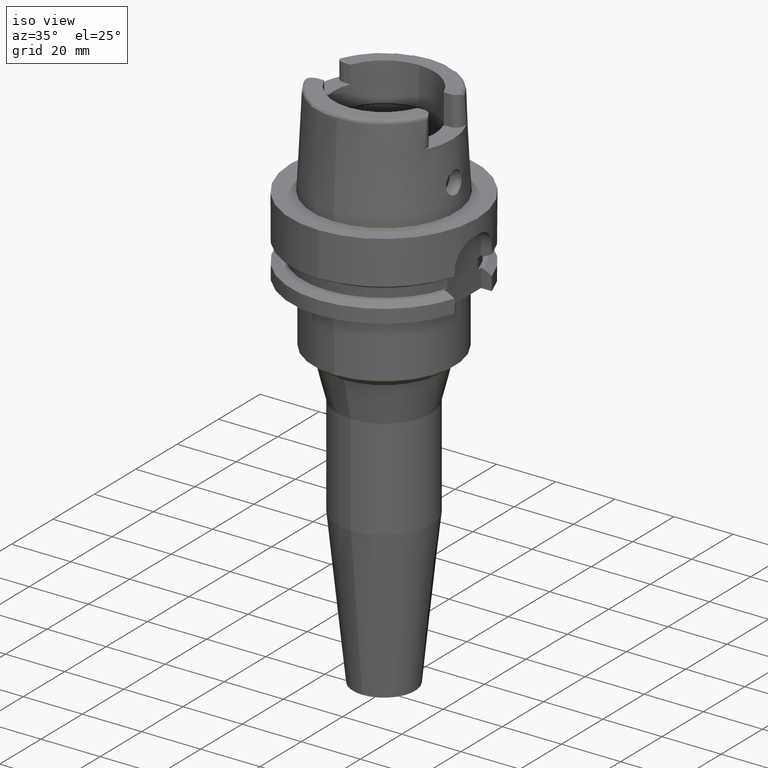
[diagram: clean part render]
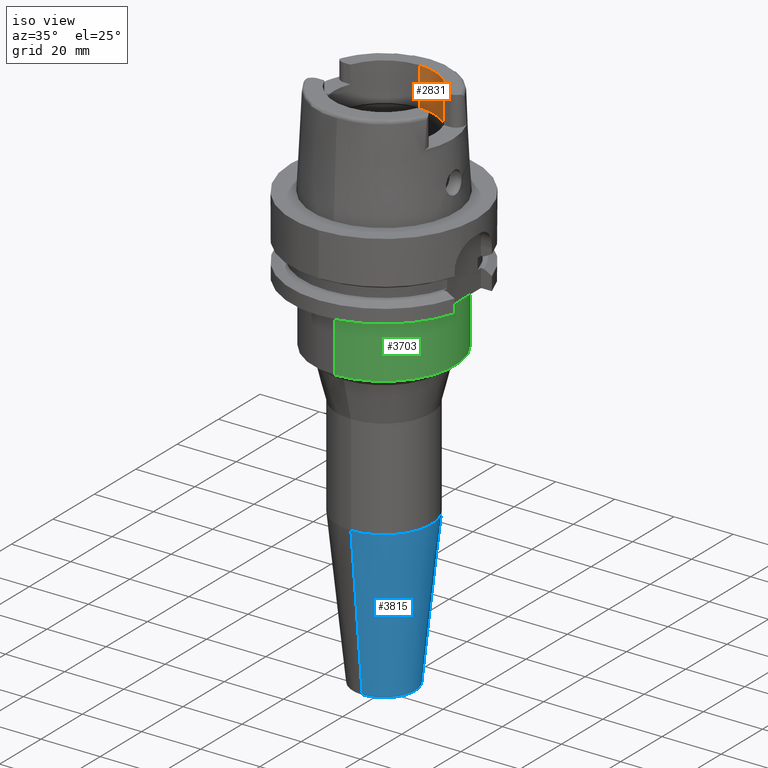
[diagram: same view with three faces highlighted in distinct colors, each labeled with its STEP entity id]
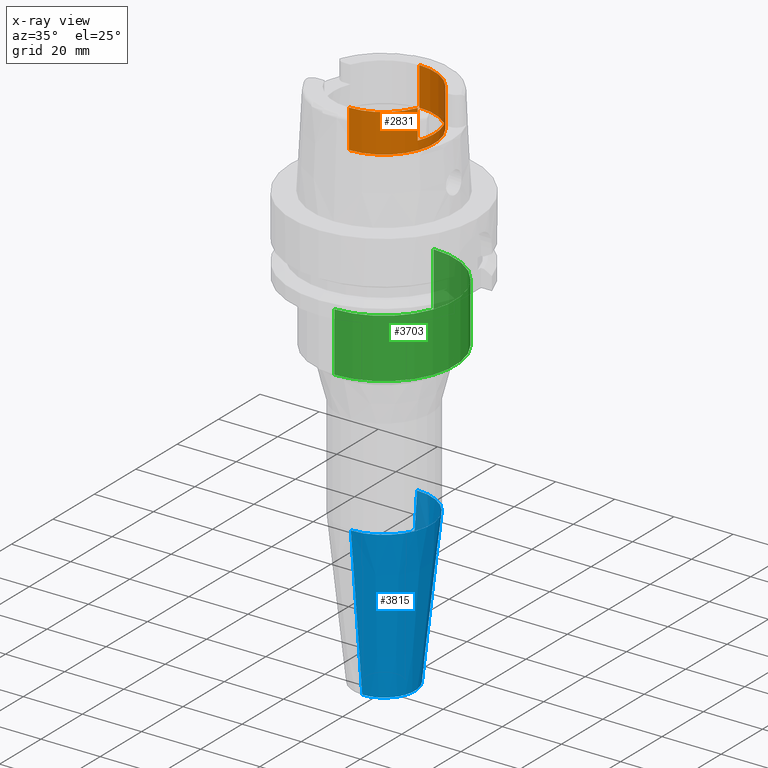
[diagram: x-ray of the same camera — body ghosted, the three highlighted faces saturated]
A machine part, iso view with three faces highlighted in distinct colors.
The next image is the same camera in x-ray (body ghosted, the three faces saturated) — at least one of them is partly hidden behind the body in this view.
Their STEP definitions:

[orange] entity #2831 — the highlighted cylindrical surface (partial cylindrical patch) has radius 17 mm, axis along (0, 0, 1).
#25=DIRECTION('',(0.E0,7.376457760500E-14,1.E0));
#26=VECTOR('',#25,1.300397459622E1);
#27=CARTESIAN_POINT('',(0.E0,-1.7E1,1.899602540378E1));
#28=LINE('',#27,#26);
#122=CARTESIAN_POINT('',(0.E0,0.E0,3.2E1));
#123=DIRECTION('',(0.E0,0.E0,1.E0));
#124=DIRECTION('',(0.E0,-1.E0,0.E0));
#125=AXIS2_PLACEMENT_3D('',#122,#123,#124);
#316=DIRECTION('',(0.E0,0.E0,1.E0));
#317=VECTOR('',#316,1.E1);
#318=CARTESIAN_POINT('',(1.580149043603E1,-6.27E0,2.2E1));
#319=LINE('',#318,#317);
#323=DIRECTION('',(0.E0,-7.376457760500E-14,1.E0));
#324=VECTOR('',#323,1.300397459622E1);
#325=CARTESIAN_POINT('',(0.E0,1.7E1,1.899602540378E1));
#326=LINE('',#325,#324);
#330=DIRECTION('',(0.E0,0.E0,-1.E0));
#331=VECTOR('',#330,1.E1);
#332=CARTESIAN_POINT('',(1.580149043603E1,6.27E0,3.2E1));
#333=LINE('',#332,#331);
#337=CARTESIAN_POINT('',(0.E0,0.E0,2.2E1));
#338=DIRECTION('',(0.E0,0.E0,1.E0));
#339=DIRECTION('',(9.294994374136E-1,-3.688235294118E-1,0.E0));
#340=AXIS2_PLACEMENT_3D('',#337,#338,#339);
#428=CARTESIAN_POINT('',(0.E0,0.E0,3.2E1));
#429=DIRECTION('',(0.E0,0.E0,1.E0));
#430=DIRECTION('',(9.294994374136E-1,3.688235294118E-1,0.E0));
#431=AXIS2_PLACEMENT_3D('',#428,#429,#430);
#2243=CARTESIAN_POINT('',(0.E0,0.E0,1.899602540378E1));
#2244=DIRECTION('',(0.E0,0.E0,-1.E0));
#2245=DIRECTION('',(0.E0,1.E0,0.E0));
#2246=AXIS2_PLACEMENT_3D('',#2243,#2244,#2245);
#2295=CARTESIAN_POINT('',(0.E0,1.7E1,3.2E1));
#2296=VERTEX_POINT('',#2295);
#2297=CARTESIAN_POINT('',(0.E0,1.7E1,1.899602540378E1));
#2298=VERTEX_POINT('',#2297);
#2299=CARTESIAN_POINT('',(0.E0,-1.7E1,1.899602540378E1));
#2300=VERTEX_POINT('',#2299);
#2301=CARTESIAN_POINT('',(0.E0,-1.7E1,3.2E1));
#2302=VERTEX_POINT('',#2301);
#2327=CARTESIAN_POINT('',(1.580149043603E1,6.27E0,3.2E1));
#2328=VERTEX_POINT('',#2327);
#2331=CARTESIAN_POINT('',(1.580149043603E1,-6.27E0,3.2E1));
#2332=VERTEX_POINT('',#2331);
#2362=CARTESIAN_POINT('',(1.580149043603E1,-6.27E0,2.2E1));
#2363=CARTESIAN_POINT('',(1.580149043603E1,6.27E0,2.2E1));
#2364=VERTEX_POINT('',#2362);
#2365=VERTEX_POINT('',#2363);
#2812=CARTESIAN_POINT('',(0.E0,0.E0,-1.591E2));
#2813=DIRECTION('',(0.E0,0.E0,1.E0));
#2814=DIRECTION('',(0.E0,1.E0,0.E0));
#2815=AXIS2_PLACEMENT_3D('',#2812,#2813,#2814);
#2816=CYLINDRICAL_SURFACE('',#2815,1.7E1);
#2818=ORIENTED_EDGE('',*,*,#2817,.F.);
#2819=ORIENTED_EDGE('',*,*,#2804,.T.);
#2820=ORIENTED_EDGE('',*,*,#2694,.F.);
#2821=ORIENTED_EDGE('',*,*,#2639,.F.);
#2823=ORIENTED_EDGE('',*,*,#2822,.F.);
#2824=ORIENTED_EDGE('',*,*,#2635,.T.);
#2826=ORIENTED_EDGE('',*,*,#2825,.F.);
#2828=ORIENTED_EDGE('',*,*,#2827,.T.);
#2829=EDGE_LOOP('',(#2818,#2819,#2820,#2821,#2823,#2824,#2826,#2828));
#2830=FACE_OUTER_BOUND('',#2829,.F.);
#126=CIRCLE('',#125,1.7E1);
#341=CIRCLE('',#340,1.7E1);
#432=CIRCLE('',#431,1.7E1);
#2247=CIRCLE('',#2246,1.7E1);
#2635=EDGE_CURVE('',#2298,#2296,#326,.T.);
#2639=EDGE_CURVE('',#2300,#2302,#28,.T.);
#2694=EDGE_CURVE('',#2302,#2332,#126,.T.);
#2804=EDGE_CURVE('',#2364,#2332,#319,.T.);
#2817=EDGE_CURVE('',#2364,#2365,#341,.T.);
#2822=EDGE_CURVE('',#2298,#2300,#2247,.T.);
#2825=EDGE_CURVE('',#2328,#2296,#432,.T.);
#2827=EDGE_CURVE('',#2328,#2365,#333,.T.);
#2831=ADVANCED_FACE('',(#2830),#2816,.F.);

[blue] entity #3815 — the highlighted conical surface has half-angle 6 deg.
#1743=DIRECTION('',(0.E0,-1.045284632677E-1,-9.945218953683E-1));
#1744=VECTOR('',#1743,5.261724728428E1);
#1745=CARTESIAN_POINT('',(0.E0,1.6E1,-9.767099550178E1));
#1746=LINE('',#1745,#1744);
#1750=CARTESIAN_POINT('',(0.E0,0.E0,-9.767099550178E1));
#1751=DIRECTION('',(0.E0,0.E0,1.E0));
#1752=DIRECTION('',(0.E0,-1.E0,0.E0));
#1753=AXIS2_PLACEMENT_3D('',#1750,#1751,#1752);
#1766=DIRECTION('',(0.E0,1.045284632677E-1,-9.945218953683E-1));
#1767=VECTOR('',#1766,5.261724728428E1);
#1768=CARTESIAN_POINT('',(0.E0,-1.6E1,-9.767099550178E1));
#1769=LINE('',#1768,#1767);
#1773=CARTESIAN_POINT('',(0.E0,0.E0,-1.5E2));
#1774=DIRECTION('',(0.E0,0.E0,1.E0));
#1775=DIRECTION('',(0.E0,-1.E0,0.E0));
#1776=AXIS2_PLACEMENT_3D('',#1773,#1774,#1775);
#2436=CARTESIAN_POINT('',(0.E0,-1.05E1,-1.5E2));
#2437=CARTESIAN_POINT('',(0.E0,1.05E1,-1.5E2));
#2438=VERTEX_POINT('',#2436);
#2439=VERTEX_POINT('',#2437);
#2440=CARTESIAN_POINT('',(0.E0,1.6E1,-9.767099550178E1));
#2441=VERTEX_POINT('',#2440);
#2442=CARTESIAN_POINT('',(0.E0,-1.6E1,-9.767099550178E1));
#2443=VERTEX_POINT('',#2442);
#3801=CARTESIAN_POINT('',(0.E0,0.E0,-1.238354977509E2));
#3802=DIRECTION('',(0.E0,0.E0,1.E0));
#3803=DIRECTION('',(0.E0,1.E0,0.E0));
#3804=AXIS2_PLACEMENT_3D('',#3801,#3802,#3803);
#3805=CONICAL_SURFACE('',#3804,1.325E1,6.E0);
#3807=ORIENTED_EDGE('',*,*,#3806,.T.);
#3809=ORIENTED_EDGE('',*,*,#3808,.F.);
#3811=ORIENTED_EDGE('',*,*,#3810,.F.);
#3812=ORIENTED_EDGE('',*,*,#3794,.T.);
#3813=EDGE_LOOP('',(#3807,#3809,#3811,#3812));
#3814=FACE_OUTER_BOUND('',#3813,.F.);
#1754=CIRCLE('',#1753,1.6E1);
#1777=CIRCLE('',#1776,1.05E1);
#3794=EDGE_CURVE('',#2443,#2441,#1754,.T.);
#3806=EDGE_CURVE('',#2441,#2439,#1746,.T.);
#3808=EDGE_CURVE('',#2438,#2439,#1777,.T.);
#3810=EDGE_CURVE('',#2443,#2438,#1769,.T.);
#3815=ADVANCED_FACE('',(#3814),#3805,.T.);

[green] entity #3703 — the highlighted cylindrical surface (partial cylindrical patch) has radius 24 mm, axis along (0, 0, 1).
#1631=CARTESIAN_POINT('',(0.E0,0.E0,-2.7E1));
#1632=DIRECTION('',(0.E0,0.E0,-1.E0));
#1633=DIRECTION('',(0.E0,1.E0,0.E0));
#1634=AXIS2_PLACEMENT_3D('',#1631,#1632,#1633);
#1639=DIRECTION('',(0.E0,1.207922650792E-14,-1.E0));
#1640=VECTOR('',#1639,2.E1);
#1641=CARTESIAN_POINT('',(0.E0,2.4E1,-2.7E1));
#1642=LINE('',#1641,#1640);
#1646=DIRECTION('',(0.E0,-1.207922650792E-14,-1.E0));
#1647=VECTOR('',#1646,2.E1);
#1648=CARTESIAN_POINT('',(0.E0,-2.4E1,-2.7E1));
#1649=LINE('',#1648,#1647);
#1683=CARTESIAN_POINT('',(0.E0,0.E0,-4.7E1));
#1684=DIRECTION('',(0.E0,0.E0,1.E0));
#1685=DIRECTION('',(0.E0,-1.E0,0.E0));
#1686=AXIS2_PLACEMENT_3D('',#1683,#1684,#1685);
#2452=CARTESIAN_POINT('',(0.E0,2.4E1,-4.7E1));
#2453=VERTEX_POINT('',#2452);
#2454=CARTESIAN_POINT('',(0.E0,-2.4E1,-4.7E1));
#2455=VERTEX_POINT('',#2454);
#2456=CARTESIAN_POINT('',(0.E0,2.4E1,-2.7E1));
#2457=VERTEX_POINT('',#2456);
#2458=CARTESIAN_POINT('',(0.E0,-2.4E1,-2.7E1));
#2459=VERTEX_POINT('',#2458);
#3689=CARTESIAN_POINT('',(0.E0,0.E0,-1.591E2));
#3690=DIRECTION('',(0.E0,0.E0,1.E0));
#3691=DIRECTION('',(0.E0,1.E0,0.E0));
#3692=AXIS2_PLACEMENT_3D('',#3689,#3690,#3691);
#3693=CYLINDRICAL_SURFACE('',#3692,2.4E1);
#3695=ORIENTED_EDGE('',*,*,#3694,.T.);
#3697=ORIENTED_EDGE('',*,*,#3696,.F.);
#3699=ORIENTED_EDGE('',*,*,#3698,.F.);
#3700=ORIENTED_EDGE('',*,*,#3682,.F.);
#3701=EDGE_LOOP('',(#3695,#3697,#3699,#3700));
#3702=FACE_OUTER_BOUND('',#3701,.F.);
#1635=CIRCLE('',#1634,2.4E1);
#1687=CIRCLE('',#1686,2.4E1);
#3682=EDGE_CURVE('',#2457,#2459,#1635,.T.);
#3694=EDGE_CURVE('',#2457,#2453,#1642,.T.);
#3696=EDGE_CURVE('',#2455,#2453,#1687,.T.);
#3698=EDGE_CURVE('',#2459,#2455,#1649,.T.);
#3703=ADVANCED_FACE('',(#3702),#3693,.T.);